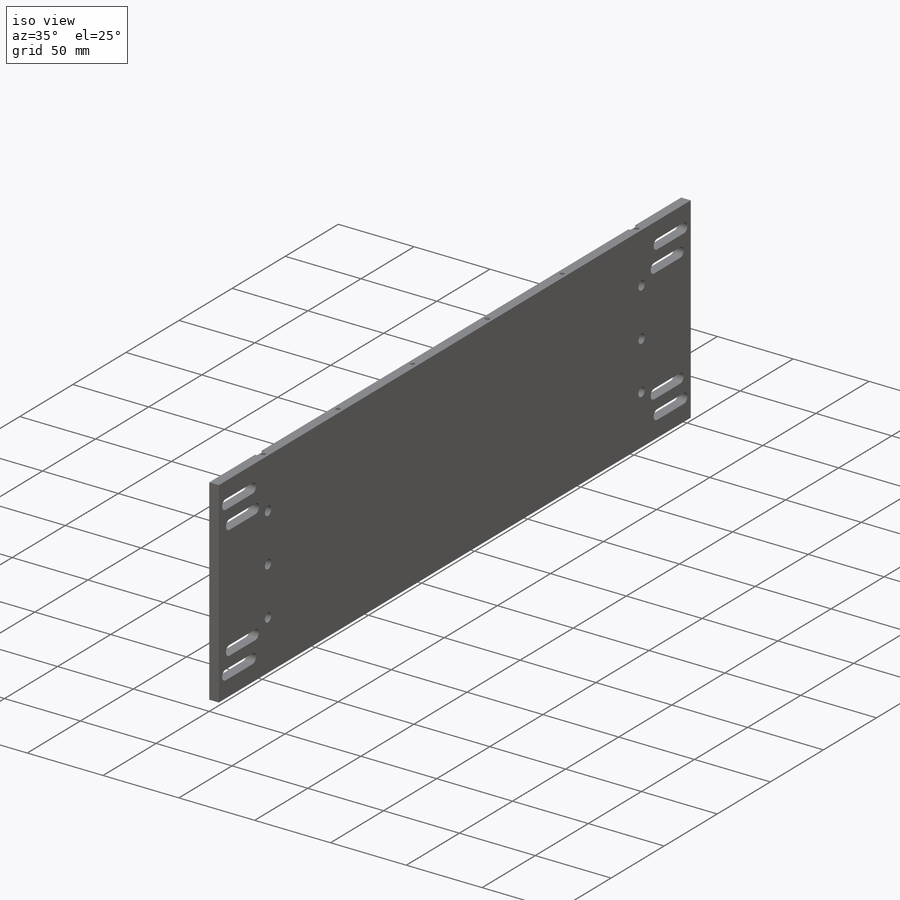
[diagram: iso view]
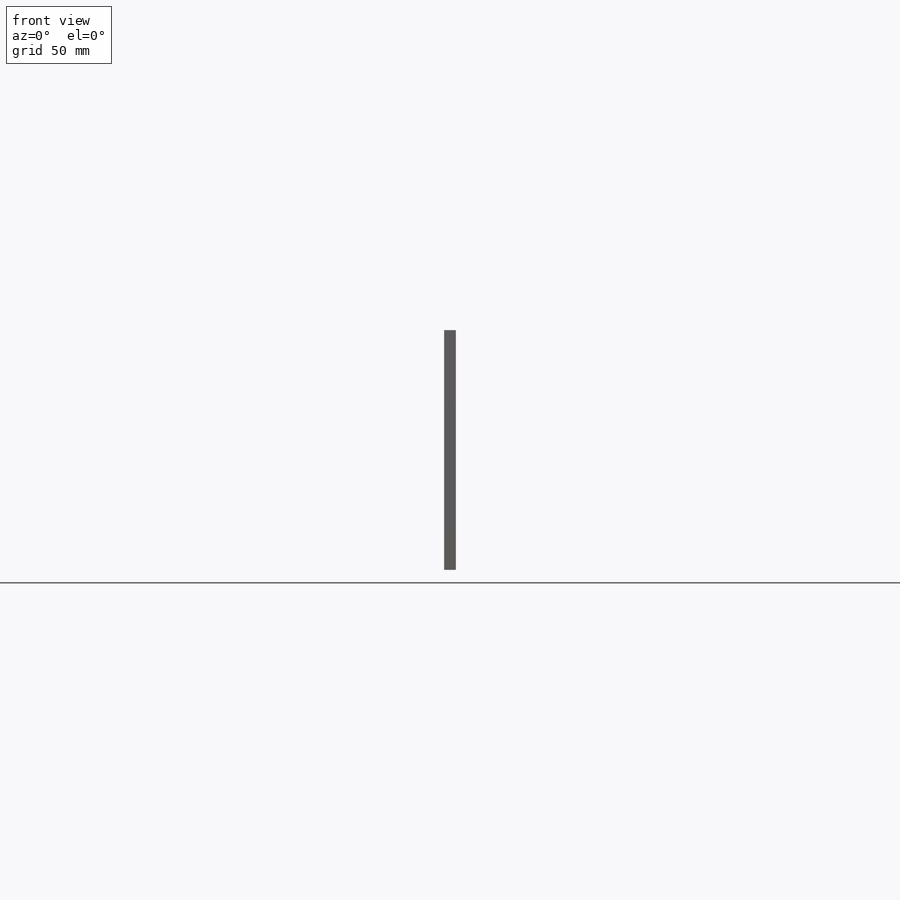
[diagram: front view]
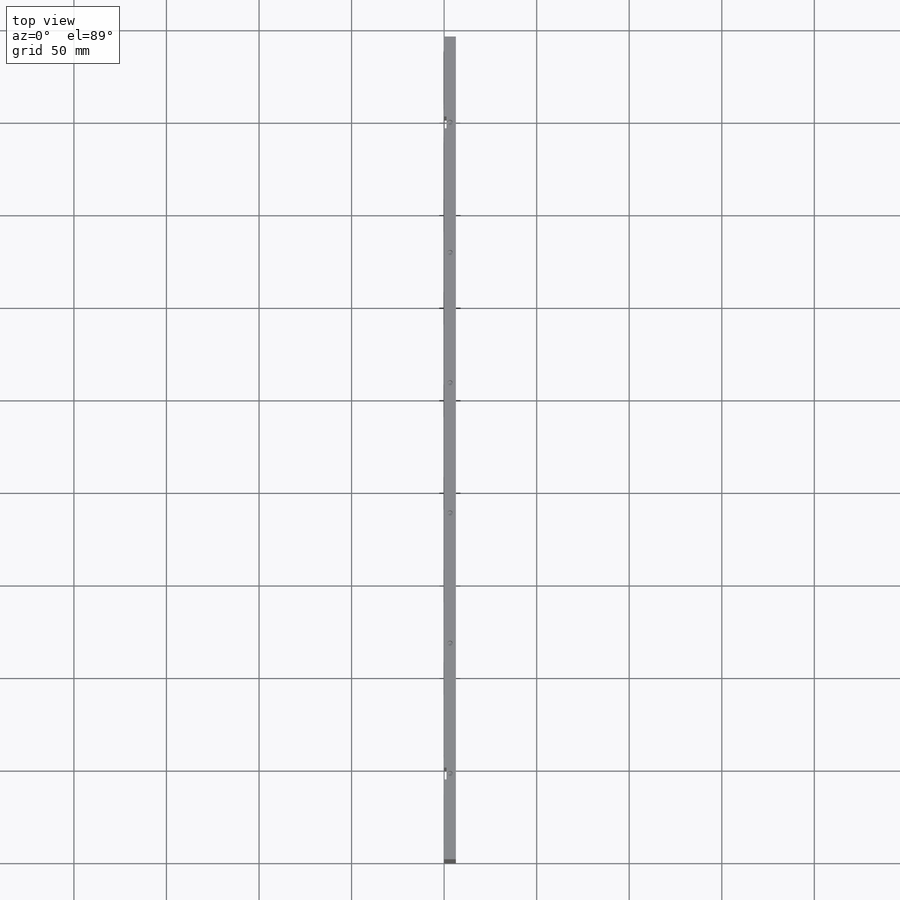
[diagram: top view]
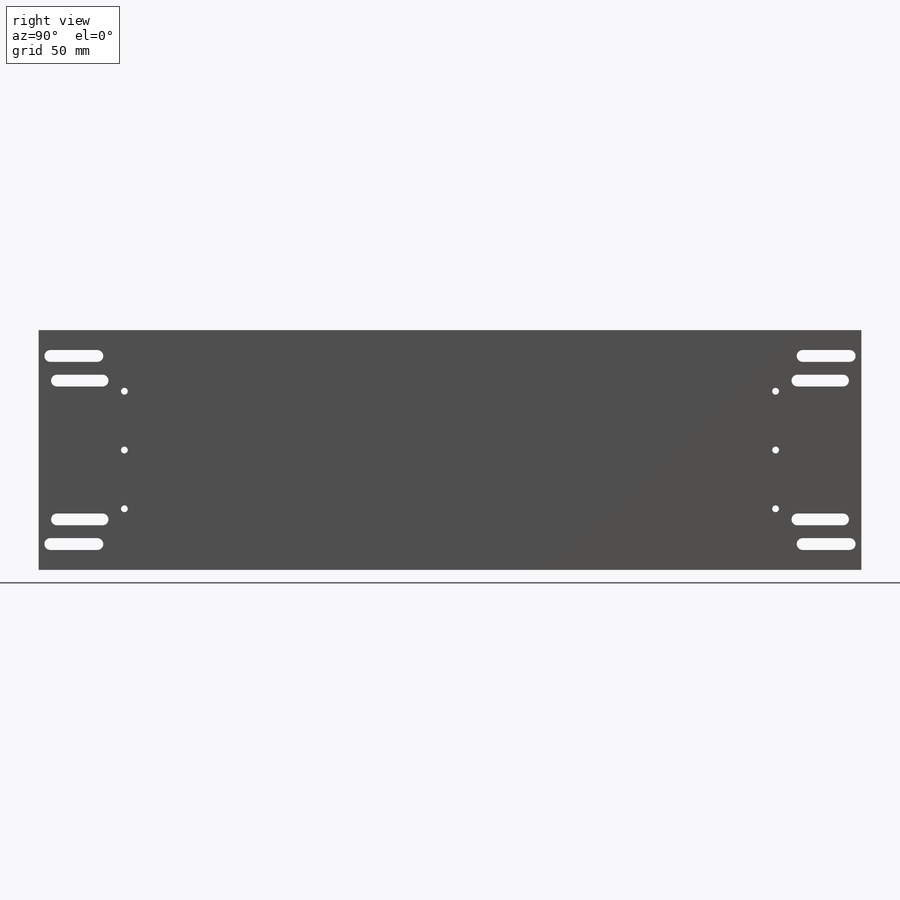
[diagram: right view]
SOLIDWORKS PART (.sldprt)
format: sldprt  version: not decoded by parser v0  size: 403,456 bytes
history: native  units: mm
features: sketch x9, hole x3, cut_extrude x2, material x1, extrude x1 (+13 scaffold rows collapsed)
feature tree (29):
  scaffold x13  (default folders/planes/origin — collapsed)
  material  "6061 Alloy"
  sketch  "Sketch1"  dims[D1=444.5mm D2=129.54mm]
  extrude  "Boss-Extrude1"  Depth=6.35mm
  hole  "CBORE for #6 Socket Head Cap Screw1"  Diameter=3.6576mm Depth=6.35mm
  sketch  "Sketch15"  dims[c1.D1=3.175mm c1.D2=63.5mm c1.D3=3.175mm c1.D4=31.75mm c1.D5=31.75mm c1.D6=31.75mm c1.D7=31.75mm c1.D8=63.5mm c1.D9=3.175mm c1.D10=3.175mm c1.D11=3.175mm c1.D12=3.175mm c2.D1=175.895mm c2.D3=175.895mm c3.D1=175.895mm c3.D3=175.895mm c3.D9=~41.441322mm]
  sketch  "Sketch14"  dims[hole-wizard template sketch: 42 standard entries collapsed; hole parameters kept: c12.Thru Hole Depth=6.35mm c12.C'Bore Dia.=6.0mm c12.C'Bore Depth=3.5052mm]
  sketch  "Sketch16"  dims[c1.D1=~2.019518mm c1.D7=3.0226mm c2.D1=190.5mm c2.D2=190.5mm c2.D3=25.4mm c3.D1=203.2mm c3.D2=200.0mm c3.D3=50.8mm c3.D4=37.5mm c3.D5=25.4mm c3.D6=24.6634mm]
  cut_extrude  "Cut-Extrude1"  [1 undecoded]
  hole  "Tap Drill for #6-32 Tap1"  Diameter=2.7051mm Depth=17.78mm
  sketch  "Sketch17"
  sketch  "Sketch18"  dims[Hole Dia.=2.7051mm Hole Depth=17.78mm Drill Angle=118.0deg]
  hole  "Tap Drill for #6-32 Tap2"  Diameter=2.7051mm Depth=17.78mm
  sketch  "Sketch19"
  sketch  "Sketch20"  dims[Hole Dia.=2.7051mm Hole Depth=17.78mm Drill Angle=118.0deg]
  sketch  "Sketch21"  dims[c1.D1=127.0mm c1.D2=~16.800832mm c2.D1=127.0mm c2.D2=~12.997379mm c3.D1=6.35mm c3.D2=127.0mm c3.D3=~8.338295mm c4.D2=6.35mm]
  cut_extrude  "Cut-Extrude2"  Depth=1.27mm
decode coverage: 12 of 15 modeling features carry decoded parameters
note: ~ marks probable driven/reference dimensions
note: 1 parameter value undecoded
note: suppression state not decoded; provenance and decode notes live in map.json
